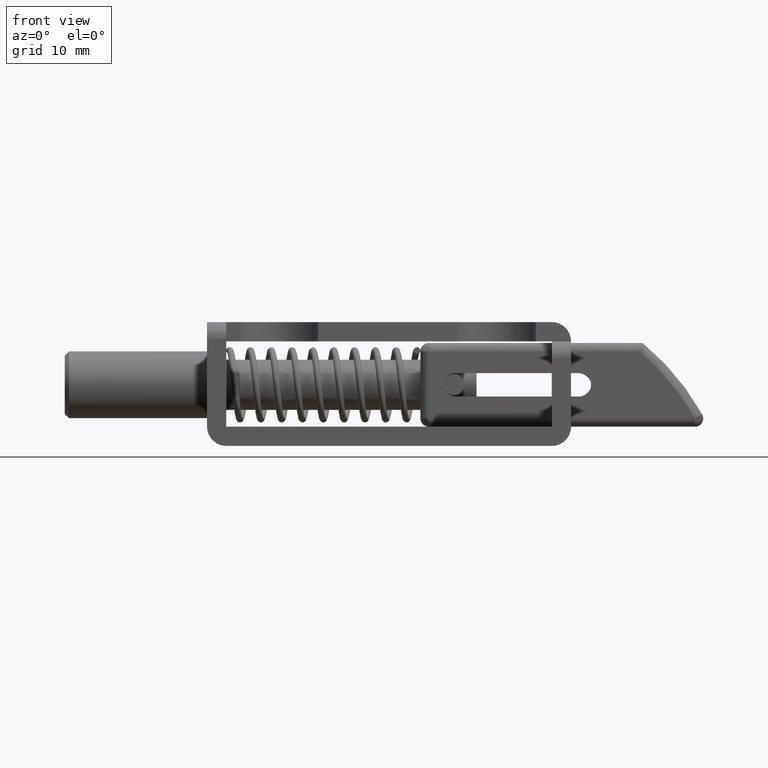
[diagram: clean part render]
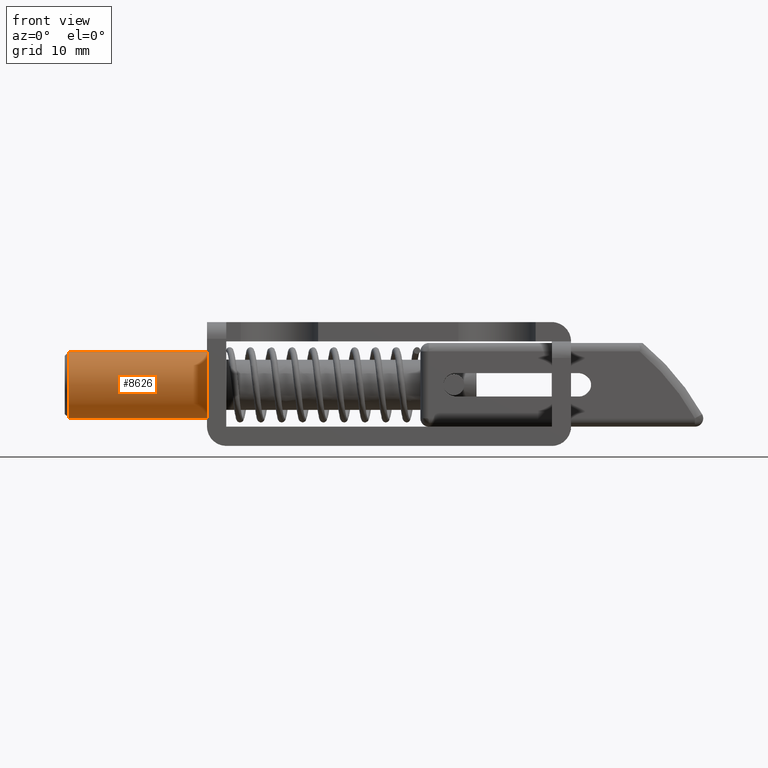
[diagram: same view with one face highlighted and labeled with its STEP entity id]
A machine part, front view. The second image highlights one B-rep face of the part: STEP entity #8626.
In plain terms, the highlighted face is a freeform B-spline surface patch.
Its self-contained STEP definition (entity closure, byte-faithful):
#8356=CARTESIAN_POINT('',(-16.500000000000000,3.972038105439259,0.472136938756716));
#8357=VERTEX_POINT('',#8356);
#8358=CARTESIAN_POINT('',(-16.499999999997240,2.151403173829240,-3.372160195432532));
#8359=VERTEX_POINT('',#8358);
#8360=CARTESIAN_POINT('',(-16.500000000000000,3.972038105439259,0.472136938756716));
#8361=CARTESIAN_POINT('',(-16.500000000000004,4.000000000000007,0.236896478738693));
#8362=CARTESIAN_POINT('',(-16.500000000000000,4.000000000000007,0.0));
#8363=CARTESIAN_POINT('',(-16.499999999999996,4.000000000000008,-2.192774623992615));
#8364=CARTESIAN_POINT('',(-16.499999999997240,2.151403173829241,-3.372160195432532));
#8372=(BOUNDED_CURVE()B_SPLINE_CURVE(2,(#8360,#8361,#8362,#8363,#8364),.UNSPECIFIED.,.F.,.U.)B_SPLINE_CURVE_WITH_KNOTS((3,2,3),(0.229562473504609,0.250000000000000,0.407950112623682),.UNSPECIFIED.)CURVE()GEOMETRIC_REPRESENTATION_ITEM()RATIONAL_B_SPLINE_CURVE((0.956026754166256,0.976055948320719,1.0,0.814949932406810,0.863729296952534))REPRESENTATION_ITEM(''));
#8373=EDGE_CURVE('',#8357,#8359,#8372,.T.);
#8416=CARTESIAN_POINT('',(-16.499999999991129,-3.987669334935996,-0.313836382980177));
#8417=VERTEX_POINT('',#8416);
#8423=CARTESIAN_POINT('',(-16.500000000000050,-3.992539612580387,-0.244187309107793));
#8424=VERTEX_POINT('',#8423);
#8425=CARTESIAN_POINT('',(-16.499999999991129,-3.987669334935995,-0.313836382980177));
#8426=CARTESIAN_POINT('',(-16.499999999999996,-3.990408412756908,-0.279033099301395));
#8427=CARTESIAN_POINT('',(-16.500000000000050,-3.992539612580387,-0.244187309107793));
#8435=(BOUNDED_CURVE()B_SPLINE_CURVE(2,(#8425,#8426,#8427),.UNSPECIFIED.,.F.,.U.)B_SPLINE_CURVE_WITH_KNOTS((3,3),(0.736331300626912,0.739333258238733),.UNSPECIFIED.)CURVE()GEOMETRIC_REPRESENTATION_ITEM()RATIONAL_B_SPLINE_CURVE((0.969723356159597,0.972855784420409,0.976072676051434))REPRESENTATION_ITEM(''));
#8436=EDGE_CURVE('',#8417,#8424,#8435,.T.);
#8489=CARTESIAN_POINT('',(-16.500000000000000,7.331592E-015,-4.0));
#8490=VERTEX_POINT('',#8489);
#8491=CARTESIAN_POINT('',(-16.499999999997240,2.151403173829241,-3.372160195432532));
#8492=CARTESIAN_POINT('',(-16.500000000000000,1.167312221572332,-4.0));
#8493=CARTESIAN_POINT('',(-16.500000000000000,7.331592E-015,-4.0));
#8501=(BOUNDED_CURVE()B_SPLINE_CURVE(2,(#8491,#8492,#8493),.UNSPECIFIED.,.F.,.U.)B_SPLINE_CURVE_WITH_KNOTS((3,3),(0.407950112623682,0.500000000000000),.UNSPECIFIED.)CURVE()GEOMETRIC_REPRESENTATION_ITEM()RATIONAL_B_SPLINE_CURVE((0.863729296952534,0.892156848779738,1.0))REPRESENTATION_ITEM(''));
#8502=EDGE_CURVE('',#8359,#8490,#8501,.T.);
#8504=CARTESIAN_POINT('',(-16.500000000000000,7.331592E-015,-4.0));
#8505=CARTESIAN_POINT('',(-16.499999999999996,-3.697561966506116,-4.000000000000001));
#8506=CARTESIAN_POINT('',(-16.499999999991129,-3.987669334935996,-0.313836382980177));
#8514=(BOUNDED_CURVE()B_SPLINE_CURVE(2,(#8504,#8505,#8506),.UNSPECIFIED.,.F.,.U.)B_SPLINE_CURVE_WITH_KNOTS((3,3),(0.500000000000000,0.736331300626911),.UNSPECIFIED.)CURVE()GEOMETRIC_REPRESENTATION_ITEM()RATIONAL_B_SPLINE_CURVE((1.0,0.723120658612058,0.969723356159594))REPRESENTATION_ITEM(''));
#8515=EDGE_CURVE('',#8490,#8417,#8514,.T.);
#8550=CARTESIAN_POINT('',(0.412500000000000,3.965031410473937,0.531083522085876));
#8551=CARTESIAN_POINT('',(0.412500000000000,3.968544636311589,0.501527124866031));
#8552=CARTESIAN_POINT('',(0.412500000000000,3.985550461794429,0.358458914551911));
#8553=CARTESIAN_POINT('',(0.412500000000000,3.992539193687474,0.244194158139428));
#8554=CARTESIAN_POINT('',(0.412500000000000,4.236733351826902,-3.748345035548039));
#8555=CARTESIAN_POINT('',(0.412500000000000,0.244194158139435,-3.992539193687467));
#8556=CARTESIAN_POINT('',(0.412500000000000,-3.748345035548032,-4.236733351826894));
#8557=CARTESIAN_POINT('',(0.412500000000000,-3.994295404542311,-0.215480364477010));
#8558=CARTESIAN_POINT('',(0.412500000000000,-3.996041183086089,-0.186937137593018));
#8559=CARTESIAN_POINT('',(-16.922812500000003,3.965031410473937,0.531083522085876));
#8560=CARTESIAN_POINT('',(-16.922812500000003,3.968544636311589,0.501527124866031));
#8561=CARTESIAN_POINT('',(-16.922812500000003,3.985550461794429,0.358458914551911));
#8562=CARTESIAN_POINT('',(-16.922812499999999,3.992539193687474,0.244194158139428));
#8563=CARTESIAN_POINT('',(-16.922812499999996,4.236733351826902,-3.748345035548039));
#8564=CARTESIAN_POINT('',(-16.922812499999999,0.244194158139435,-3.992539193687467));
#8565=CARTESIAN_POINT('',(-16.922812499999996,-3.748345035548032,-4.236733351826894));
#8566=CARTESIAN_POINT('',(-16.922812499999996,-3.994295404542311,-0.215480364477010));
#8567=CARTESIAN_POINT('',(-16.922812500000006,-3.996041183086089,-0.186937137593018));
#8575=(BOUNDED_SURFACE()B_SPLINE_SURFACE(2,1,((#8550,#8559),(#8551,#8560),(#8552,#8561),(#8553,#8562),(#8554,#8563),(#8555,#8564),(#8556,#8565),(#8557,#8566),(#8558,#8567)),.UNSPECIFIED.,.F.,.F.,.U.)B_SPLINE_SURFACE_WITH_KNOTS((3,1,2,2,1,3),(2,2),(0.0,0.067599692214299,0.332696372133080,6.960113370102599,13.587530368072120,13.655138099270800),(0.0,17.335312500000001),.UNSPECIFIED.)GEOMETRIC_REPRESENTATION_ITEM()RATIONAL_B_SPLINE_SURFACE(((0.972008777706478,0.972008777706478),(0.974757289250803,0.974757289250803),(0.988284271247462,0.988284271247462),(1.0,1.0),(0.707106781186548,0.707106781186548),(1.0,1.0),(0.707106781186548,0.707106781186548),(1.002987867824452,1.002987867824452),(1.005975735648903,1.005975735648903)))REPRESENTATION_ITEM('')SURFACE());
#8576=ORIENTED_EDGE('',*,*,#8373,.F.);
#8577=CARTESIAN_POINT('',(1.525987E-016,3.972038105439259,0.472136938756716));
#8578=VERTEX_POINT('',#8577);
#8579=CARTESIAN_POINT('',(1.525987E-016,3.972038105439259,0.472136938756716));
#8580=CARTESIAN_POINT('',(-16.500000000000000,3.972038105439259,0.472136938756716));
#8581=QUASI_UNIFORM_CURVE('',1,(#8579,#8580),.UNSPECIFIED.,.F.,.U.);
#8582=EDGE_CURVE('',#8578,#8357,#8581,.T.);
#8583=ORIENTED_EDGE('',*,*,#8582,.F.);
#8584=CARTESIAN_POINT('',(-4.898425E-016,7.331592E-015,-4.0));
#8585=VERTEX_POINT('',#8584);
#8586=CARTESIAN_POINT('',(1.525987E-016,3.972038105439259,0.472136938756716));
#8587=CARTESIAN_POINT('',(-4.898425E-016,4.000000000000007,0.236896478738693));
#8588=CARTESIAN_POINT('',(-4.898425E-016,4.000000000000007,0.0));
#8589=CARTESIAN_POINT('',(-4.898425E-016,4.000000000000007,-4.000000000000000));
#8590=CARTESIAN_POINT('',(-4.898425E-016,7.331592E-015,-4.0));
#8598=(BOUNDED_CURVE()B_SPLINE_CURVE(2,(#8586,#8587,#8588,#8589,#8590),.UNSPECIFIED.,.F.,.U.)B_SPLINE_CURVE_WITH_KNOTS((3,2,3),(0.229562473504609,0.250000000000000,0.500000000000000),.UNSPECIFIED.)CURVE()GEOMETRIC_REPRESENTATION_ITEM()RATIONAL_B_SPLINE_CURVE((0.956026754166256,0.976055948320719,1.0,0.707106781186548,1.0))REPRESENTATION_ITEM(''));
#8599=EDGE_CURVE('',#8578,#8585,#8598,.T.);
#8600=ORIENTED_EDGE('',*,*,#8599,.T.);
#8601=CARTESIAN_POINT('',(-8.277884E-016,-3.992539607399251,-0.244187393823362));
#8602=VERTEX_POINT('',#8601);
#8603=CARTESIAN_POINT('',(-4.898425E-016,7.331592E-015,-4.0));
#8604=CARTESIAN_POINT('',(-4.898425E-016,-3.762830654664366,-4.000000000000000));
#8605=CARTESIAN_POINT('',(-8.277884E-016,-3.992539607399251,-0.244187393823362));
#8613=(BOUNDED_CURVE()B_SPLINE_CURVE(2,(#8603,#8604,#8605),.UNSPECIFIED.,.F.,.U.)B_SPLINE_CURVE_WITH_KNOTS((3,3),(0.500000000000000,0.739333254577552),.UNSPECIFIED.)CURVE()GEOMETRIC_REPRESENTATION_ITEM()RATIONAL_B_SPLINE_CURVE((1.0,0.719603650790725,0.976072668204807))REPRESENTATION_ITEM(''));
#8614=EDGE_CURVE('',#8585,#8602,#8613,.T.);
#8615=ORIENTED_EDGE('',*,*,#8614,.T.);
#8616=CARTESIAN_POINT('',(-8.277884E-016,-3.992539607399251,-0.244187393823362));
#8617=CARTESIAN_POINT('',(-16.500000000000050,-3.992539612580387,-0.244187309107793));
#8618=QUASI_UNIFORM_CURVE('',1,(#8616,#8617),.UNSPECIFIED.,.F.,.U.);
#8619=EDGE_CURVE('',#8602,#8424,#8618,.T.);
#8620=ORIENTED_EDGE('',*,*,#8619,.T.);
#8621=ORIENTED_EDGE('',*,*,#8436,.F.);
#8622=ORIENTED_EDGE('',*,*,#8515,.F.);
#8623=ORIENTED_EDGE('',*,*,#8502,.F.);
#8624=EDGE_LOOP('',(#8576,#8583,#8600,#8615,#8620,#8621,#8622,#8623));
#8625=FACE_OUTER_BOUND('',#8624,.T.);
#8626=ADVANCED_FACE('',(#8625),#8575,.T.);